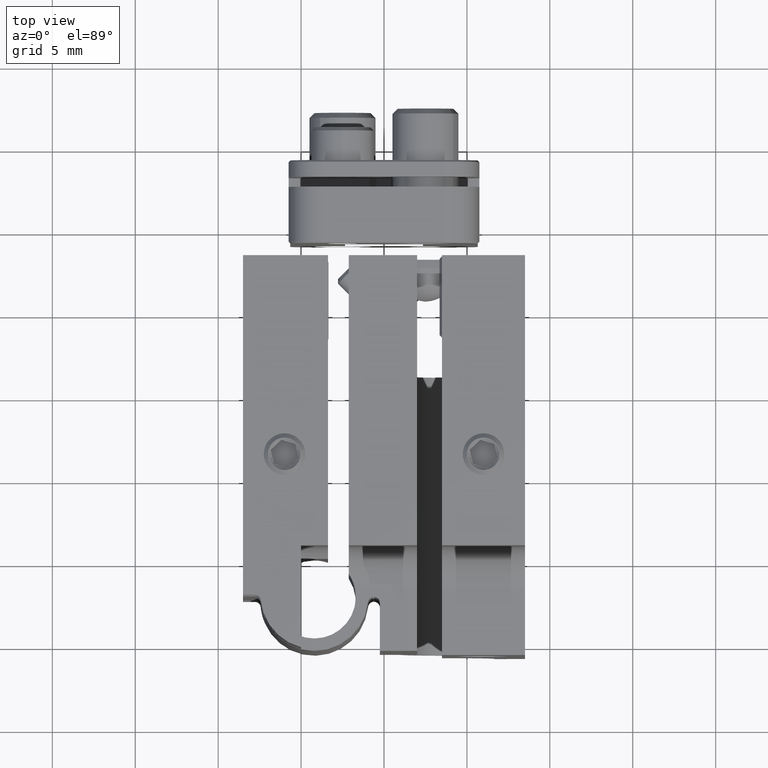
[diagram: clean part render]
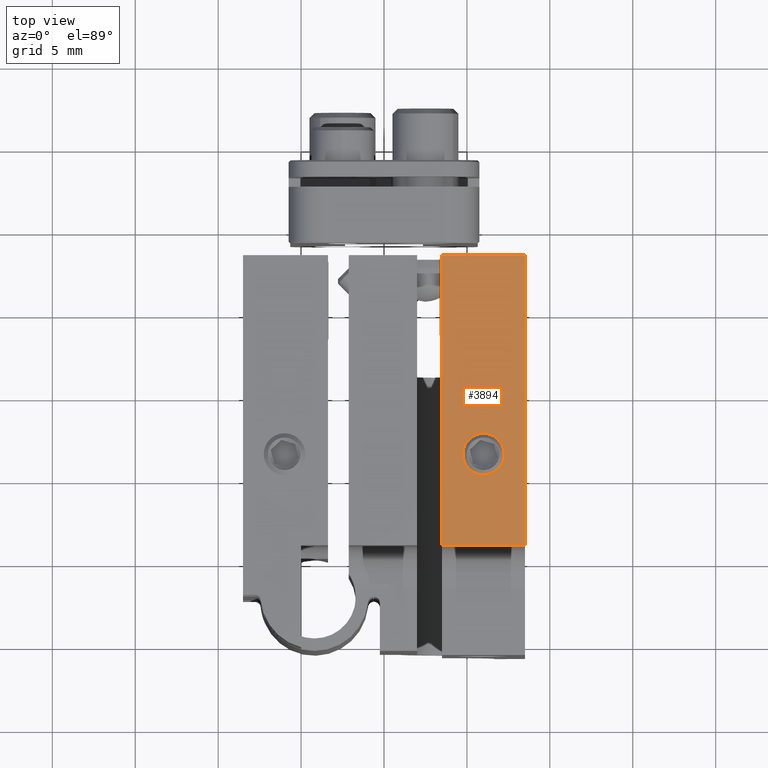
[diagram: same view with one face highlighted and labeled with its STEP entity id]
A machine part, top view. The second image highlights one B-rep face of the part: STEP entity #3894.
In plain terms, the highlighted planar face has unit normal (0, 0, -1).
Its self-contained STEP definition (entity closure, byte-faithful):
#35 = ORIENTED_EDGE ( 'NONE', *, *, #5516, .T. ) ;
#136 = ORIENTED_EDGE ( 'NONE', *, *, #5214, .F. ) ;
#234 = VECTOR ( 'NONE', #8088, 1000.000000000000000 ) ;
#941 = ORIENTED_EDGE ( 'NONE', *, *, #4956, .F. ) ;
#1103 = CARTESIAN_POINT ( 'NONE',  ( 3.500000000000000000, 5.857782386305951050, 32.68764634029930249 ) ) ;
#1104 = DIRECTION ( 'NONE',  ( 0.000000000000000000, -1.000000000000000000, 0.000000000000000000 ) ) ;
#1265 = VERTEX_POINT ( 'NONE', #1103 ) ;
#1463 = CARTESIAN_POINT ( 'NONE',  ( 8.500000000000000000, 23.35778238630594572, 32.68764634029930960 ) ) ;
#1518 = CARTESIAN_POINT ( 'NONE',  ( 3.500000000000000000, 23.35778238630594572, 32.68764634029930960 ) ) ;
#1599 = CARTESIAN_POINT ( 'NONE',  ( 5.999999999999999112, 10.10778238630595816, 32.68764634029930960 ) ) ;
#2166 = EDGE_LOOP ( 'NONE', ( #8872, #35, #941, #9524 ) ) ;
#2365 = CARTESIAN_POINT ( 'NONE',  ( 8.500000000000000000, 23.35778238630594572, 32.68764634029930960 ) ) ;
#2449 = LINE ( 'NONE', #9200, #4375 ) ;
#2524 = CIRCLE ( 'NONE', #4168, 1.249999999999987121 ) ;
#2985 = CIRCLE ( 'NONE', #10888, 1.249999999999987121 ) ;
#3140 = DIRECTION ( 'NONE',  ( 0.000000000000000000, 0.000000000000000000, -1.000000000000000000 ) ) ;
#3374 = LINE ( 'NONE', #5218, #10321 ) ;
#3559 = CARTESIAN_POINT ( 'NONE',  ( 5.999999999999999112, 11.35778238630594572, 32.68764634029930960 ) ) ;
#3690 = CARTESIAN_POINT ( 'NONE',  ( 5.999999999999999112, 12.60778238630593329, 32.68764634029930960 ) ) ;
#3850 = EDGE_CURVE ( 'NONE', #11322, #9086, #2449, .T. ) ;
#3894 = ADVANCED_FACE ( 'NONE', ( #10271, #4977 ), #8399, .F. ) ;
#3909 = CARTESIAN_POINT ( 'NONE',  ( 5.999999999999999112, 11.35778238630594572, 32.68764634029930960 ) ) ;
#4168 = AXIS2_PLACEMENT_3D ( 'NONE', #3909, #8150, #1104 ) ;
#4375 = VECTOR ( 'NONE', #5856, 1000.000000000000000 ) ;
#4540 = CARTESIAN_POINT ( 'NONE',  ( 3.500000000000000000, -0.6422176136940561664, 32.68764634029930249 ) ) ;
#4956 = EDGE_CURVE ( 'NONE', #11322, #10466, #5773, .T. ) ;
#4977 = FACE_OUTER_BOUND ( 'NONE', #2166, .T. ) ;
#5214 = EDGE_CURVE ( 'NONE', #6959, #7321, #2524, .T. ) ;
#5218 = CARTESIAN_POINT ( 'NONE',  ( -17.55248658727139954, 5.857782386305952826, 32.68764634029930249 ) ) ;
#5375 = EDGE_CURVE ( 'NONE', #7321, #6959, #2985, .T. ) ;
#5468 = VECTOR ( 'NONE', #9391, 1000.000000000000000 ) ;
#5516 = EDGE_CURVE ( 'NONE', #1265, #10466, #3374, .T. ) ;
#5773 = LINE ( 'NONE', #2365, #5468 ) ;
#5856 = DIRECTION ( 'NONE',  ( -1.000000000000000000, 0.000000000000000000, -0.000000000000000000 ) ) ;
#5906 = DIRECTION ( 'NONE',  ( 0.000000000000000000, 1.000000000000000000, 0.000000000000000000 ) ) ;
#6218 = DIRECTION ( 'NONE',  ( 0.000000000000000000, 0.000000000000000000, 1.000000000000000000 ) ) ;
#6807 = EDGE_LOOP ( 'NONE', ( #9415, #136 ) ) ;
#6842 = CARTESIAN_POINT ( 'NONE',  ( 8.000000000000000000, 23.35778238630594572, 32.68764634029930960 ) ) ;
#6959 = VERTEX_POINT ( 'NONE', #3690 ) ;
#7039 = LINE ( 'NONE', #4540, #234 ) ;
#7096 = DIRECTION ( 'NONE',  ( 0.000000000000000000, -1.000000000000000000, 0.000000000000000000 ) ) ;
#7321 = VERTEX_POINT ( 'NONE', #1599 ) ;
#8088 = DIRECTION ( 'NONE',  ( 0.000000000000000000, 1.000000000000000000, 2.048885995248197414E-16 ) ) ;
#8150 = DIRECTION ( 'NONE',  ( 0.000000000000000000, 0.000000000000000000, 1.000000000000000000 ) ) ;
#8399 = PLANE ( 'NONE',  #9352 ) ;
#8526 = CARTESIAN_POINT ( 'NONE',  ( 8.500000000000000000, 5.857782386305952826, 32.68764634029930249 ) ) ;
#8728 = DIRECTION ( 'NONE',  ( 1.000000000000000000, 0.000000000000000000, 0.000000000000000000 ) ) ;
#8872 = ORIENTED_EDGE ( 'NONE', *, *, #10644, .F. ) ;
#9086 = VERTEX_POINT ( 'NONE', #1518 ) ;
#9200 = CARTESIAN_POINT ( 'NONE',  ( 8.000000000000000000, 23.35778238630594572, 32.68764634029930960 ) ) ;
#9352 = AXIS2_PLACEMENT_3D ( 'NONE', #6842, #3140, #5906 ) ;
#9391 = DIRECTION ( 'NONE',  ( 0.000000000000000000, -1.000000000000000000, 0.000000000000000000 ) ) ;
#9415 = ORIENTED_EDGE ( 'NONE', *, *, #5375, .F. ) ;
#9524 = ORIENTED_EDGE ( 'NONE', *, *, #3850, .T. ) ;
#10271 = FACE_BOUND ( 'NONE', #6807, .T. ) ;
#10321 = VECTOR ( 'NONE', #8728, 1000.000000000000000 ) ;
#10466 = VERTEX_POINT ( 'NONE', #8526 ) ;
#10644 = EDGE_CURVE ( 'NONE', #1265, #9086, #7039, .T. ) ;
#10888 = AXIS2_PLACEMENT_3D ( 'NONE', #3559, #6218, #7096 ) ;
#11322 = VERTEX_POINT ( 'NONE', #1463 ) ;